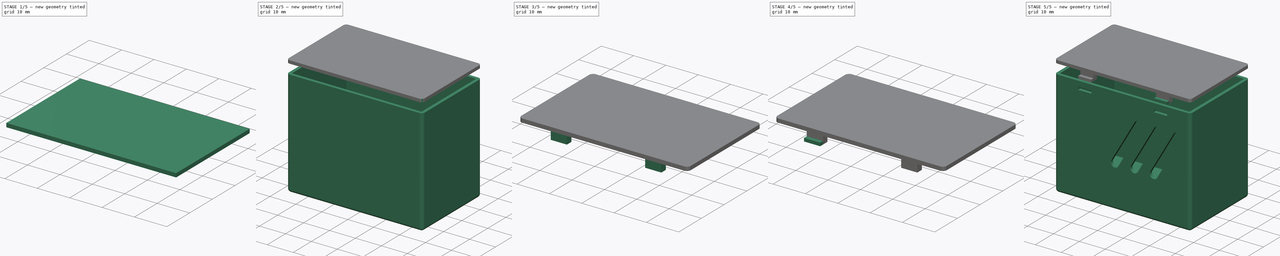
[diagram: build sequence overview — one tinted view per stage of 5, left to right]
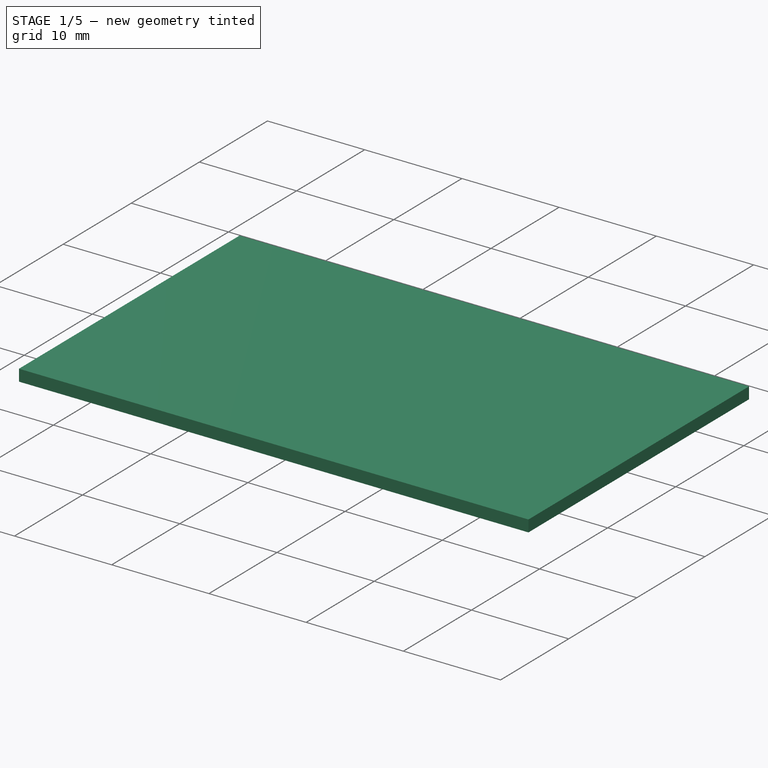
[diagram: stage 1 of 5 — iso view after this stage's code; geometry added in this stage tinted green]
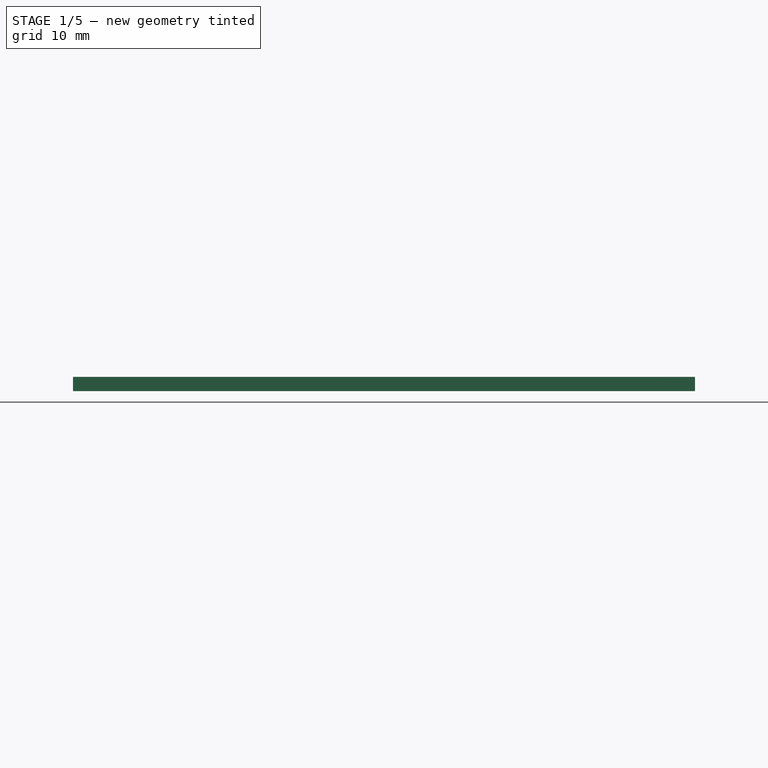
[diagram: stage 1 of 5 — front view after this stage's code; geometry added in this stage tinted green]
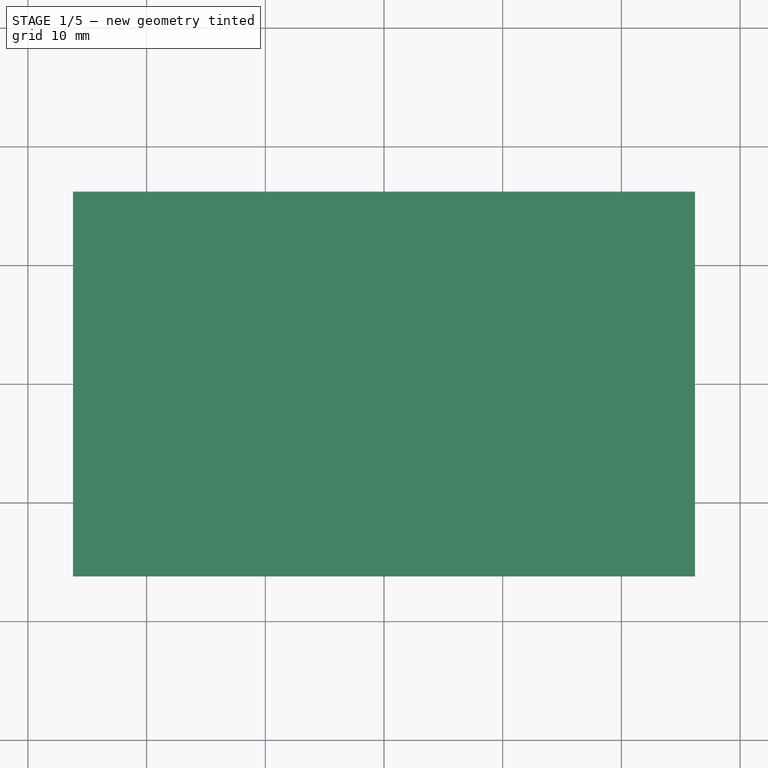
[diagram: stage 1 of 5 — top view after this stage's code; geometry added in this stage tinted green]
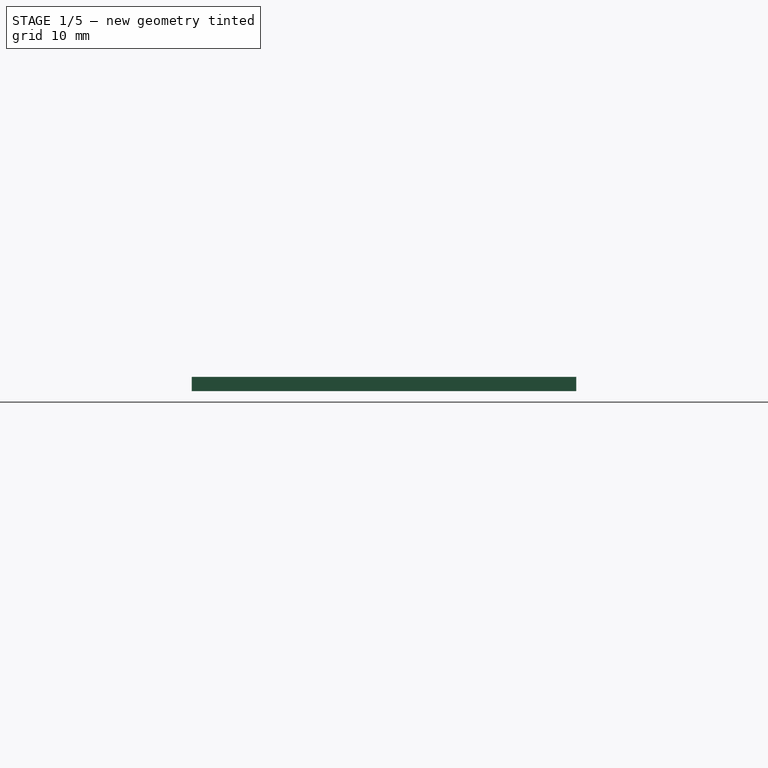
[diagram: stage 1 of 5 — right view after this stage's code; geometry added in this stage tinted green]
FCSTD DOCUMENT  (FreeCAD 0.18.3R)
Label: DimmerCase00
License: All rights reserved
LicenseURL: http://en.wikipedia.org/wiki/All_rights_reserved
objects: Sketcher::SketchObject×8, PartDesign::Pad×4, PartDesign::Pocket×4, PartDesign::Mirrored×3, PartDesign::Body×2, PartDesign::Thickness×1, PartDesign::LinearPattern×1, PartDesign::Fillet×1, PartDesign::PolarPattern×1, App::Part×1
note: 33 computed .brp shape members not serialized (recipe doc carries the construction recipe); baked Part::Feature solids carry a one-line shape summary decoded from their .brp

FEATURE [Sketcher::SketchObject] Sketch
  MapMode = 5
  Support = -> [XY_Plane001]
  sketch-geometry (4):
    g0: LineSegment StartX=-25 StartY=15 StartZ=0 EndX=25 EndY=15 EndZ=0
    g1: LineSegment StartX=25 StartY=15 StartZ=0 EndX=25 EndY=-15 EndZ=0
    g2: LineSegment StartX=25 StartY=-15 StartZ=0 EndX=-25 EndY=-15 EndZ=0
    g3: LineSegment StartX=-25 StartY=-15 StartZ=0 EndX=-25 EndY=15 EndZ=0
  constraints (11):
    c: Coincident(g0,g1)
    c: Coincident(g1,g2)
    c: Coincident(g2,g3)
    c: Coincident(g3,g0)
    c: Horizontal(g0)
    c: Horizontal(g2)
    c: Vertical(g1)
    c: Vertical(g3)
    c: Symmetric(g2,g0,g-1)
    c: DistanceX(g0,g0) = 50  'largo'
    c: DistanceY(g3,g3) = 30  'ancho'
FEATURE [PartDesign::Pad] Pad
  Length = 40
  Length2 = 100
  Profile = -> Sketch
  Type = 0
FEATURE [PartDesign::Thickness] Thickness  label="Cascaron"
  Base = -> Pad [Face6]
  BaseFeature = -> Pad
  Join = 0
  Mode = 0
  Value = 1.2
FEATURE [PartDesign::Body] Body  label="Caja"
  Group = -> [Sketch,Pad,Thickness,Sketch001,Pocket,Sketch002,Pocket001,Sketch003,Pocket002,LinearPattern,Sketch004,Pocket003,Mirrored]
  Origin = -> Origin001
  Tip = -> Mirrored
FEATURE [Sketcher::SketchObject] Sketch006
  AttachmentOffset = pos=(0,0,45) rot=(0,0,1;0rad)
  MapMode = 5
  Placement = pos=(0,0,45) rot=(0,0,1;0rad)
  Support = -> [XY_Plane002]
  expr: Constraints[9] = Sketch.Constraints.ancho + 2 * Cascaron.Value
  expr: Constraints[8] = Sketch.Constraints.largo + 2 * Cascaron.Value
  sketch-geometry (4):
    g0: LineSegment StartX=-26.2 StartY=16.2 StartZ=0 EndX=26.2 EndY=16.2 EndZ=0
    g1: LineSegment StartX=26.2 StartY=16.2 StartZ=0 EndX=26.2 EndY=-16.2 EndZ=0
    g2: LineSegment StartX=26.2 StartY=-16.2 StartZ=0 EndX=-26.2 EndY=-16.2 EndZ=0
    g3: LineSegment StartX=-26.2 StartY=-16.2 StartZ=0 EndX=-26.2 EndY=16.2 EndZ=0
  constraints (11):
    c: Coincident(g0,g1)
    c: Coincident(g1,g2)
    c: Coincident(g2,g3)
    c: Coincident(g3,g0)
    c: Horizontal(g0)
    c: Horizontal(g2)
    c: Vertical(g1)
    c: Vertical(g3)
    c: DistanceX(g0,g0) = 52.4
    c: DistanceY(g1,g1) = 32.4
    c: Symmetric(g0,g1,g-1)
FEATURE [PartDesign::Pad] Pad001
  Length = 1.2
  Length2 = 100
  Profile = -> Sketch006
  Reversed = true
  Type = 0
  expr: Length = Cascaron.Value
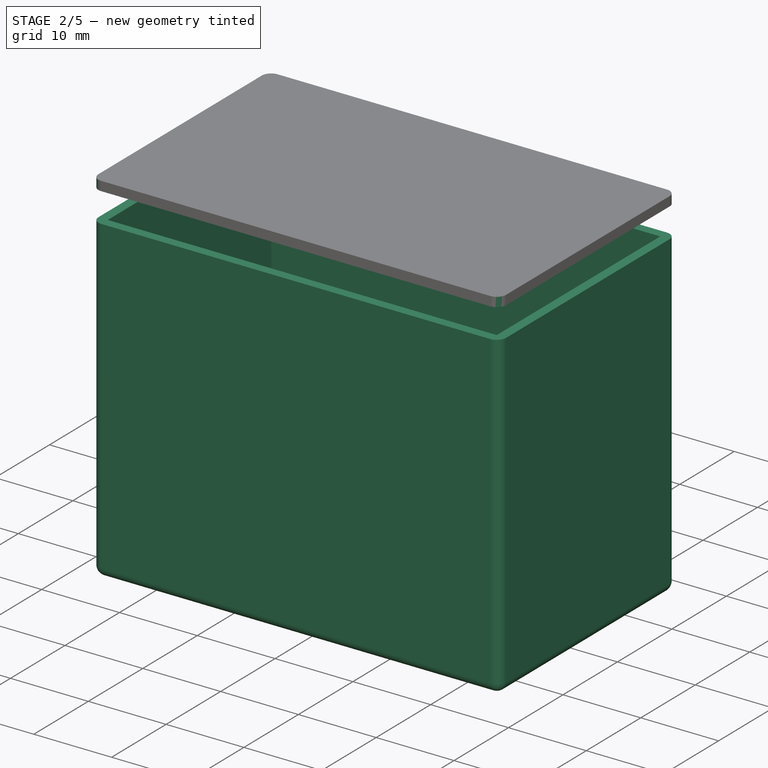
[diagram: stage 2 of 5 — iso view after this stage's code; geometry added in this stage tinted green]
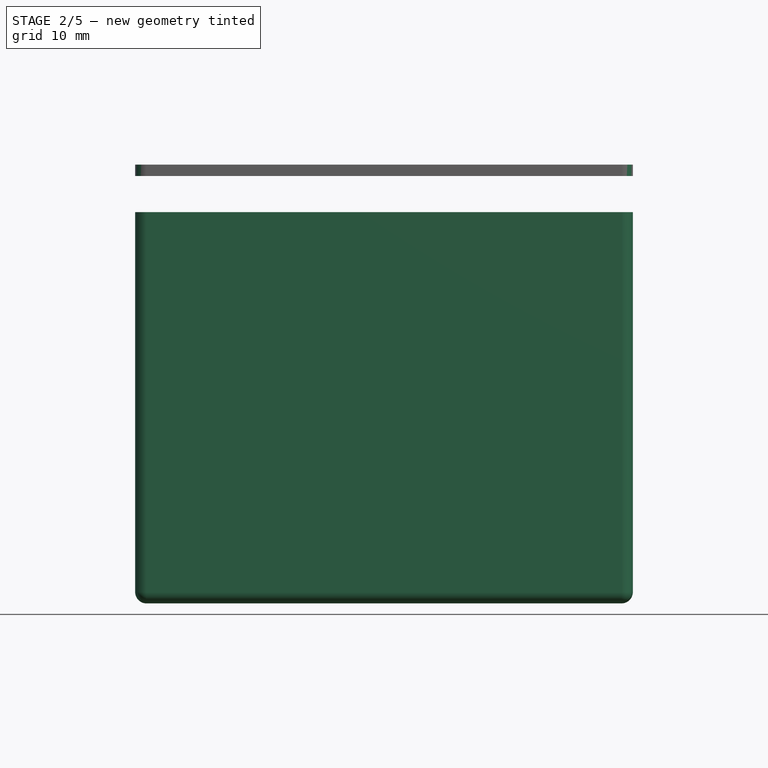
[diagram: stage 2 of 5 — front view after this stage's code; geometry added in this stage tinted green]
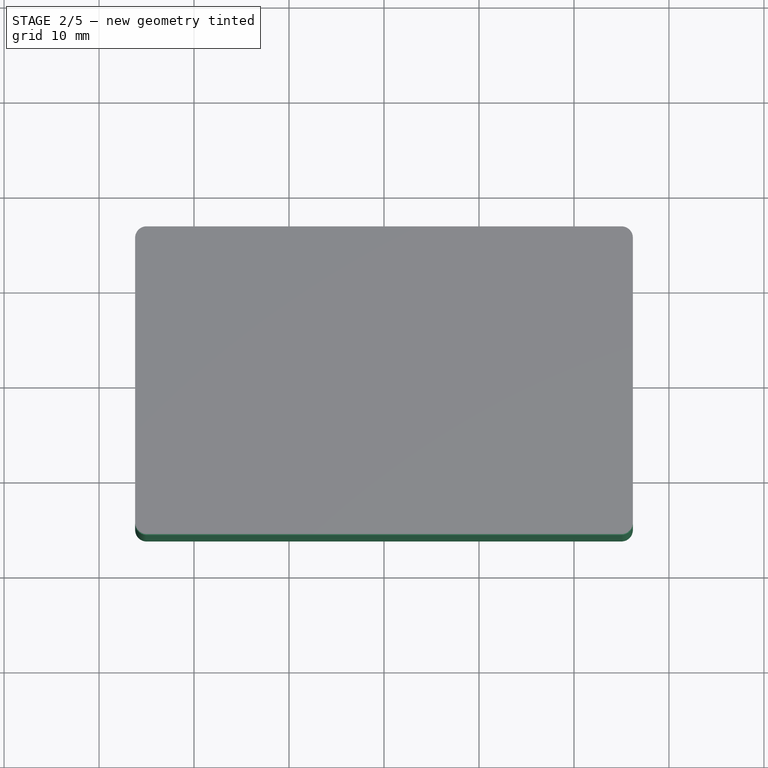
[diagram: stage 2 of 5 — top view after this stage's code; geometry added in this stage tinted green]
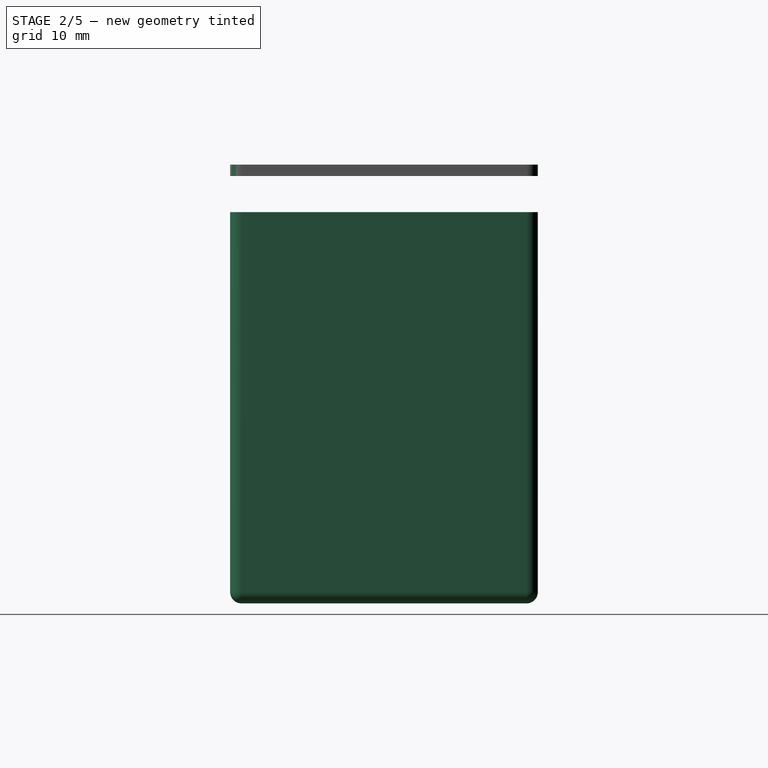
[diagram: stage 2 of 5 — right view after this stage's code; geometry added in this stage tinted green]
FEATURE [Sketcher::SketchObject] Sketch001  label="potenciometro"
  ExternalGeometry = -> [Thickness]
  MapMode = 5
  Placement = pos=(0,0,-1.2) rot=(1,0,0;3.14159rad)
  Support = -> [Thickness]
  sketch-geometry (1):
    g0: Circle CenterX=6 CenterY=2.5 CenterZ=0 NormalX=0 NormalY=0 NormalZ=1 AngleXU=0 Radius=3.5
  constraints (3):
    c: Radius(g0) = 3.5
    c: DistanceX(g0,g-3) = 19
    c: DistanceY(g-3,g0) = 17.5
FEATURE [PartDesign::Pocket] Pocket  label="pot"
  BaseFeature = -> Thickness
  Length = 5
  Length2 = 100
  Profile = -> Sketch001
  Type = 1
FEATURE [Sketcher::SketchObject] Sketch002
  ExternalGeometry = -> [Pocket]
  MapMode = 5
  Placement = pos=(-26.2,0,0) rot=(0.57735,-0.57735,-0.57735;2.0944rad)
  Support = -> [Pocket]
  sketch-geometry (2):
    g0: Circle CenterX=5 CenterY=12 CenterZ=0 NormalX=0 NormalY=0 NormalZ=1 AngleXU=0 Radius=3
    g1: Circle CenterX=5 CenterY=25 CenterZ=0 NormalX=0 NormalY=0 NormalZ=1 AngleXU=0 Radius=3
  constraints (6):
    c: Radius(g0) = 3
    c: DistanceX(g-3,g0) = 20
    c: DistanceY(g-3,g0) = 12
    c: Equal(g0,g1) = 3
    c: DistanceX(g-3,g1) = 20
    c: DistanceY(g1,g-3) = 15
FEATURE [PartDesign::Pocket] Pocket001  label="cables"
  BaseFeature = -> Pocket
  Length = 2
  Length2 = 100
  Profile = -> Sketch002
  Type = 0
FEATURE [PartDesign::Fillet] Fillet
  Base = -> Pad001 [Edge8,Edge1,Edge2,Edge5]
  BaseFeature = -> Pad001
  Radius = 1.2
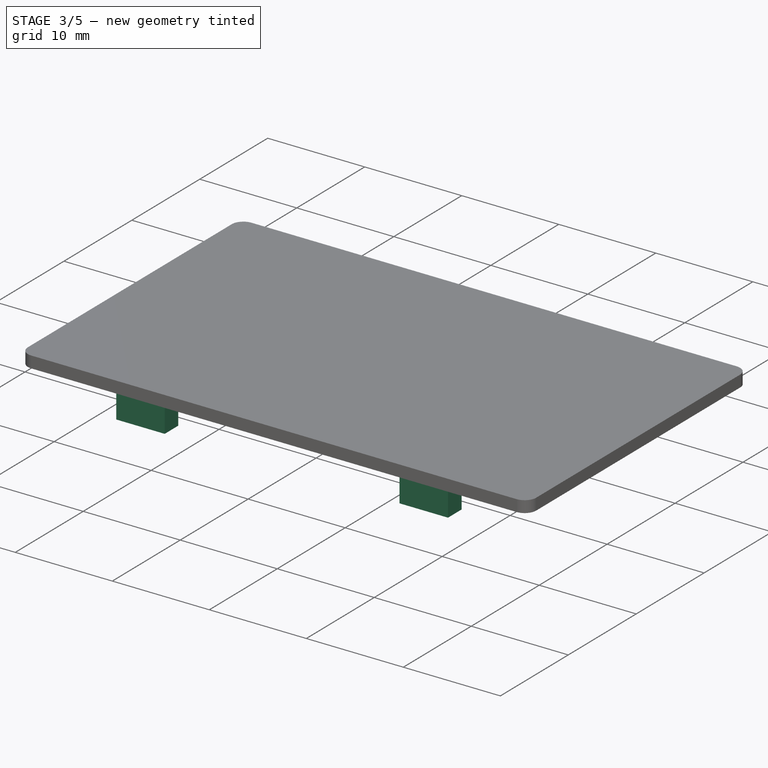
[diagram: stage 3 of 5 — iso view after this stage's code; geometry added in this stage tinted green]
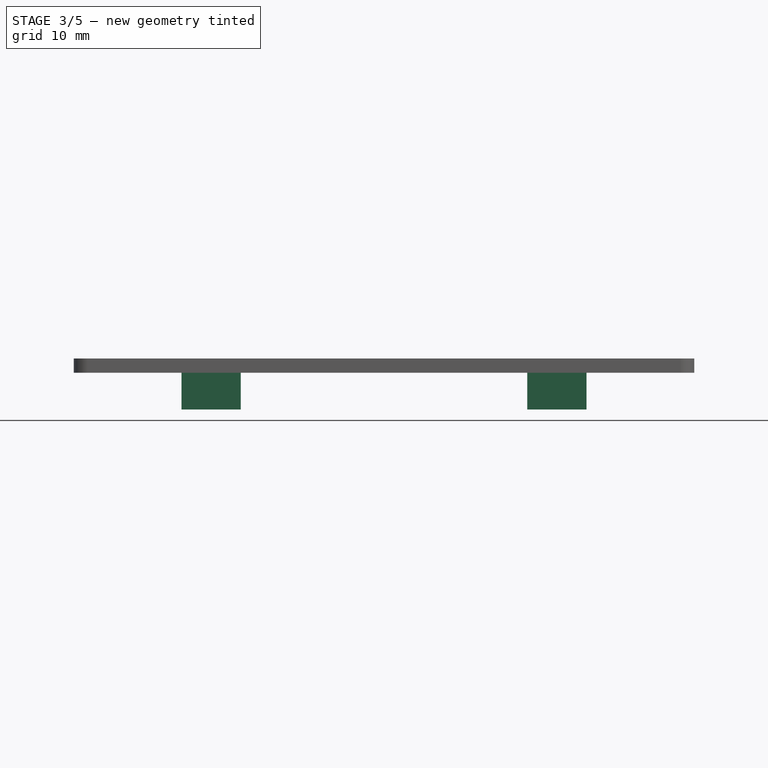
[diagram: stage 3 of 5 — front view after this stage's code; geometry added in this stage tinted green]
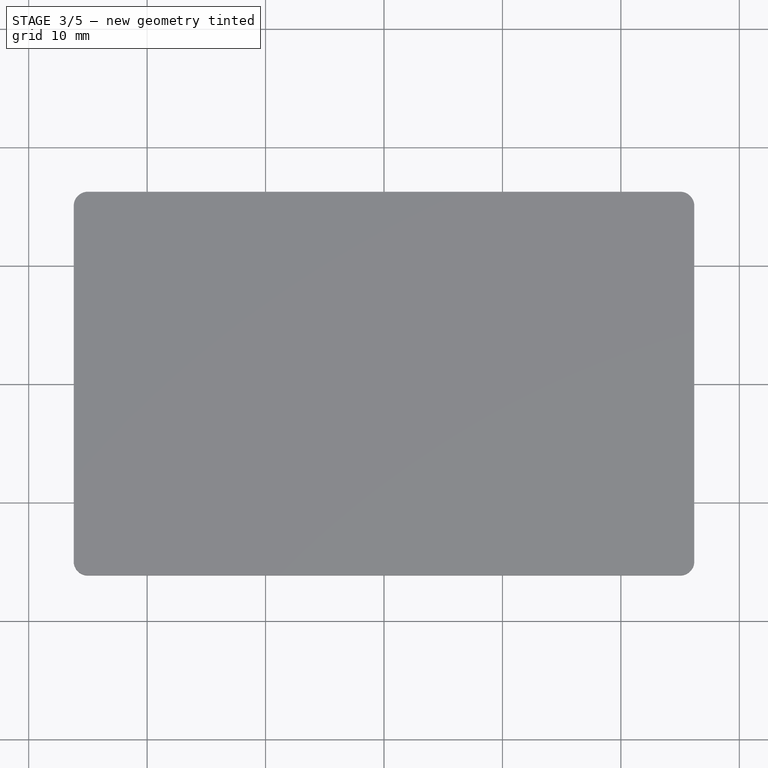
[diagram: stage 3 of 5 — top view after this stage's code; geometry added in this stage tinted green]
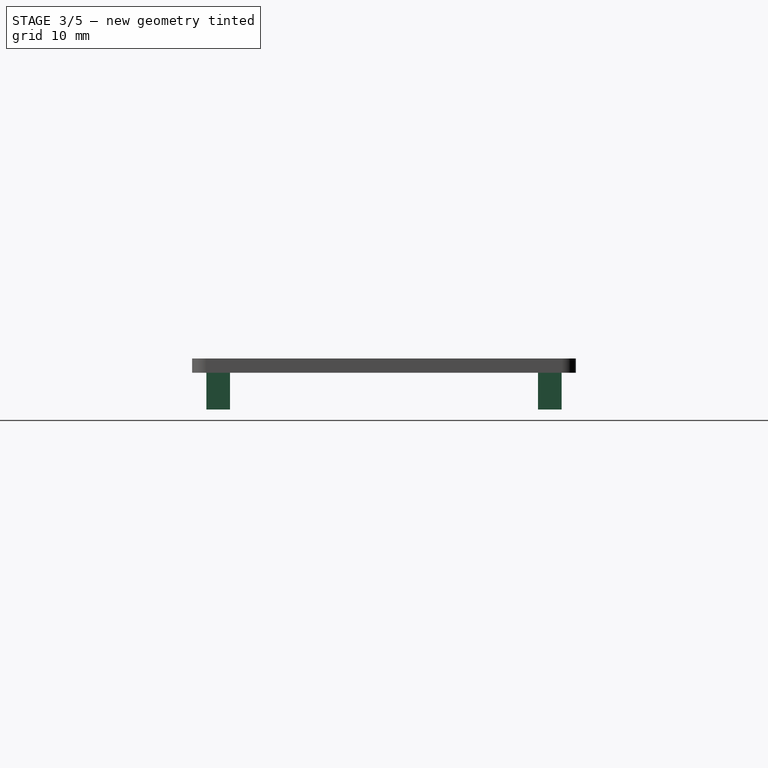
[diagram: stage 3 of 5 — right view after this stage's code; geometry added in this stage tinted green]
FEATURE [Sketcher::SketchObject] Sketch003
  MapMode = 5
  Placement = pos=(0,-16.2,0) rot=(1,0,0;1.5708rad)
  Support = -> [Pocket001]
  sketch-geometry (5):
    g0: ArcOfCircle CenterX=12 CenterY=15 CenterZ=0 NormalX=0 NormalY=0 NormalZ=1 AngleXU=0 Radius=1.5 StartAngle=2.61799 EndAngle=5.75959
    g1: ArcOfCircle CenterX=21 CenterY=30.5885 CenterZ=0 NormalX=0 NormalY=0 NormalZ=1 AngleXU=0 Radius=1.5 StartAngle=5.75959 EndAngle=8.90118
    g2: LineSegment StartX=13.299 StartY=14.25 StartZ=0 EndX=22.299 EndY=29.8385 EndZ=0
    g3: LineSegment StartX=10.701 StartY=15.75 StartZ=0 EndX=19.701 EndY=31.3385 EndZ=0
    g4: LineSegment [constr] StartX=12 StartY=15 StartZ=0 EndX=21 EndY=30.5885 EndZ=0
  constraints (12):
    c: Tangent(g0,g3) = 1.5708
    c: Tangent(g0,g2) = -1.5708
    c: Tangent(g2,g1) = -1.5708
    c: Tangent(g3,g1) = 1.5708
    c: Equal(g0,g1)
    c: Coincident(g4,g1)
    c: Coincident(g4,g0)
    c: Angle(g-2,g4) = 2.61799
    c: Distance(g4) = 18
    c: Distance(g0,g0) = 3
    c: DistanceX(g-1,g0) = 12
    c: DistanceY(g-1,g0) = 15
FEATURE [PartDesign::Pocket] Pocket002  label="ranura"
  BaseFeature = -> Pocket001
  Length = 5
  Length2 = 100
  Profile = -> Sketch003
  Type = 0
FEATURE [PartDesign::LinearPattern] LinearPattern  label="ranuras"
  BaseFeature = -> Pocket002
  Direction = -> Sketch003 [H_Axis]
  Length = 15
  Occurrences = 3
  Originals = -> [Pocket002]
  Reversed = true
FEATURE [Sketcher::SketchObject] Sketch007
  MapMode = 5
  Placement = pos=(0,0,43.8) rot=(1,0,0;3.14159rad)
  Support = -> [Fillet]
  expr: Constraints[11] = Sketch.Constraints.ancho / 2
  expr: Constraints[10] = Sketch004.Constraints.SeparacionDelCentro - 0.1mm
  sketch-geometry (16):
    g0: LineSegment StartX=-17.1 StartY=15 StartZ=0 EndX=-12.1 EndY=15 EndZ=0
    g1: LineSegment StartX=-12.1 StartY=15 StartZ=0 EndX=-12.1 EndY=13 EndZ=0
    g2: LineSegment StartX=-12.1 StartY=13 StartZ=0 EndX=-17.1 EndY=13 EndZ=0
    g3: LineSegment StartX=-17.1 StartY=13 StartZ=0 EndX=-17.1 EndY=15 EndZ=0
    g4: LineSegment StartX=17.1 StartY=15 StartZ=0 EndX=12.1 EndY=15 EndZ=0
    g5: LineSegment StartX=12.1 StartY=15 StartZ=0 EndX=12.1 EndY=13 EndZ=0
    g6: LineSegment StartX=12.1 StartY=13 StartZ=0 EndX=17.1 EndY=13 EndZ=0
    g7: LineSegment StartX=17.1 StartY=13 StartZ=0 EndX=17.1 EndY=15 EndZ=0
    g8: LineSegment StartX=-17.1 StartY=-15 StartZ=0 EndX=-12.1 EndY=-15 EndZ=0
    g9: LineSegment StartX=-12.1 StartY=-15 StartZ=0 EndX=-12.1 EndY=-13 EndZ=0
    g10: LineSegment StartX=-12.1 StartY=-13 StartZ=0 EndX=-17.1 EndY=-13 EndZ=0
    g11: LineSegment StartX=-17.1 StartY=-13 StartZ=0 EndX=-17.1 EndY=-15 EndZ=0
    g12: LineSegment StartX=17.1 StartY=-15 StartZ=0 EndX=12.1 EndY=-15 EndZ=0
    g13: LineSegment StartX=12.1 StartY=-15 StartZ=0 EndX=12.1 EndY=-13 EndZ=0
    g14: LineSegment StartX=12.1 StartY=-13 StartZ=0 EndX=17.1 EndY=-13 EndZ=0
    g15: LineSegment StartX=17.1 StartY=-13 StartZ=0 EndX=17.1 EndY=-15 EndZ=0
  constraints (36):
    c: Coincident(g0,g1)
    c: Coincident(g1,g2)
    c: Coincident(g2,g3)
    c: Coincident(g3,g0)
    c: Horizontal(g0)
    c: Horizontal(g2)
    c: Vertical(g1)
    c: Vertical(g3)
    c: DistanceX(g2,g2) = 5
    c: DistanceY(g1,g1) = 2
    c: DistanceX(g-2,g0) = -12.1
    c: DistanceY(g-1,g0) = 15
    c: Coincident(g4,g5)
    c: Coincident(g5,g6)
    c: Coincident(g6,g7)
    c: Coincident(g7,g4)
    c: Horizontal(g4)
    c: Horizontal(g6)
    c: Vertical(g5)
    c: Vertical(g7)
    c: Coincident(g8,g9)
    c: Coincident(g9,g10)
    c: Coincident(g10,g11)
    c: Coincident(g11,g8)
    c: Horizontal(g8)
    c: Horizontal(g10)
    c: Vertical(g9)
    c: Vertical(g11)
    c: Coincident(g12,g13)
    c: Coincident(g13,g14)
    c: Coincident(g14,g15)
    c: Coincident(g15,g12)
    c: Horizontal(g12)
    c: Horizontal(g14)
    c: Vertical(g13)
    c: Vertical(g15)
FEATURE [PartDesign::Pad] Pad002
  BaseFeature = -> Fillet
  Length = 3.1
  Length2 = 100
  Profile = -> Sketch007
  Type = 0
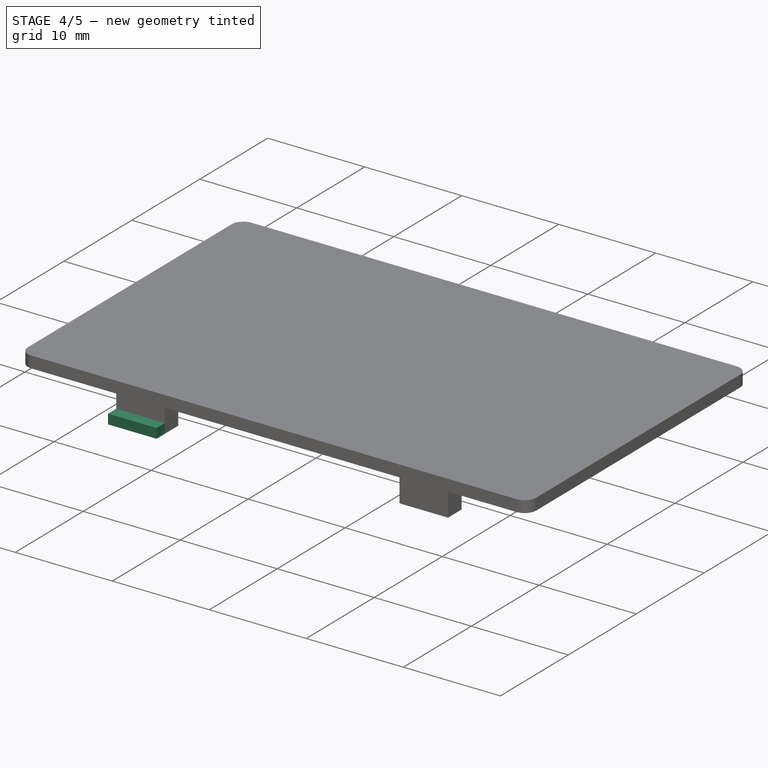
[diagram: stage 4 of 5 — iso view after this stage's code; geometry added in this stage tinted green]
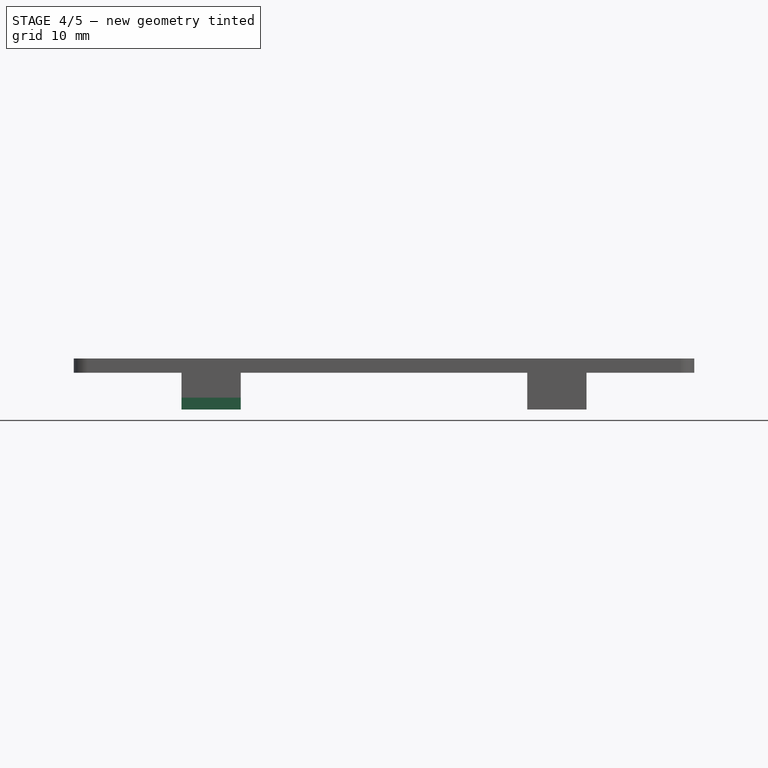
[diagram: stage 4 of 5 — front view after this stage's code; geometry added in this stage tinted green]
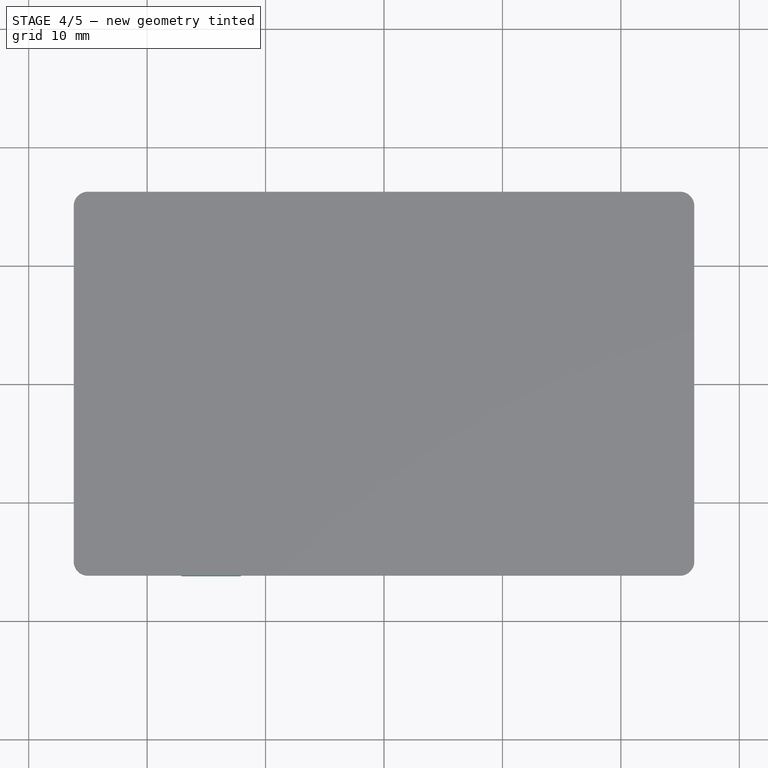
[diagram: stage 4 of 5 — top view after this stage's code; geometry added in this stage tinted green]
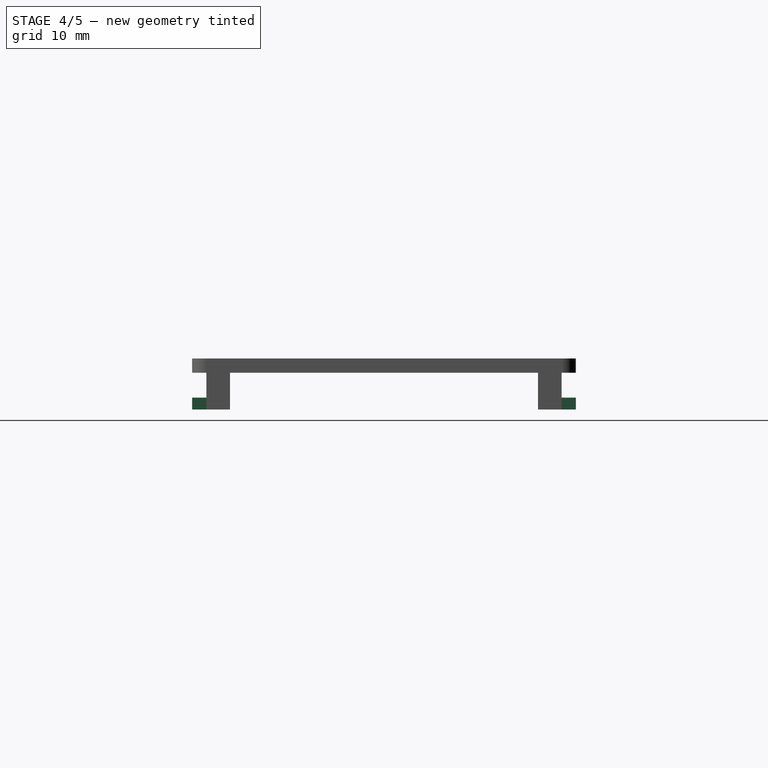
[diagram: stage 4 of 5 — right view after this stage's code; geometry added in this stage tinted green]
FEATURE [Sketcher::SketchObject] Sketch008
  ExternalGeometry = -> [Pad002]
  MapMode = 5
  Placement = pos=(0,-15,0) rot=(1,0,0;1.5708rad)
  Support = -> [Pad002]
  sketch-geometry (4):
    g0: LineSegment StartX=-17.1 StartY=41.7 StartZ=0 EndX=-12.1 EndY=41.7 EndZ=0
    g1: LineSegment StartX=-12.1 StartY=41.7 StartZ=0 EndX=-12.1 EndY=40.7 EndZ=0
    g2: LineSegment StartX=-12.1 StartY=40.7 StartZ=0 EndX=-17.1 EndY=40.7 EndZ=0
    g3: LineSegment StartX=-17.1 StartY=40.7 StartZ=0 EndX=-17.1 EndY=41.7 EndZ=0
  constraints (10):
    c: Coincident(g0,g1)
    c: Coincident(g1,g2)
    c: Coincident(g2,g3)
    c: Coincident(g3,g0)
    c: Horizontal(g0)
    c: Vertical(g1)
    c: Vertical(g3)
    c: Coincident(g2,g-3)
    c: Coincident(g1,g-4)
    c: DistanceY(g1,g1) = 1
FEATURE [PartDesign::Pad] Pad003
  BaseFeature = -> Pad002
  Length = 1.2
  Length2 = 100
  Profile = -> Sketch008
  Type = 0
  expr: Length = Cascaron.Value
FEATURE [PartDesign::PolarPattern] PolarPattern
  Angle = 360
  Axis = -> Z_Axis002
  BaseFeature = -> Pad003
  Occurrences = 2
  Originals = -> [Pad003]
FEATURE [PartDesign::Mirrored] Mirrored001
  BaseFeature = -> PolarPattern
  MirrorPlane = -> XZ_Plane002
  Originals = -> [Pad003]
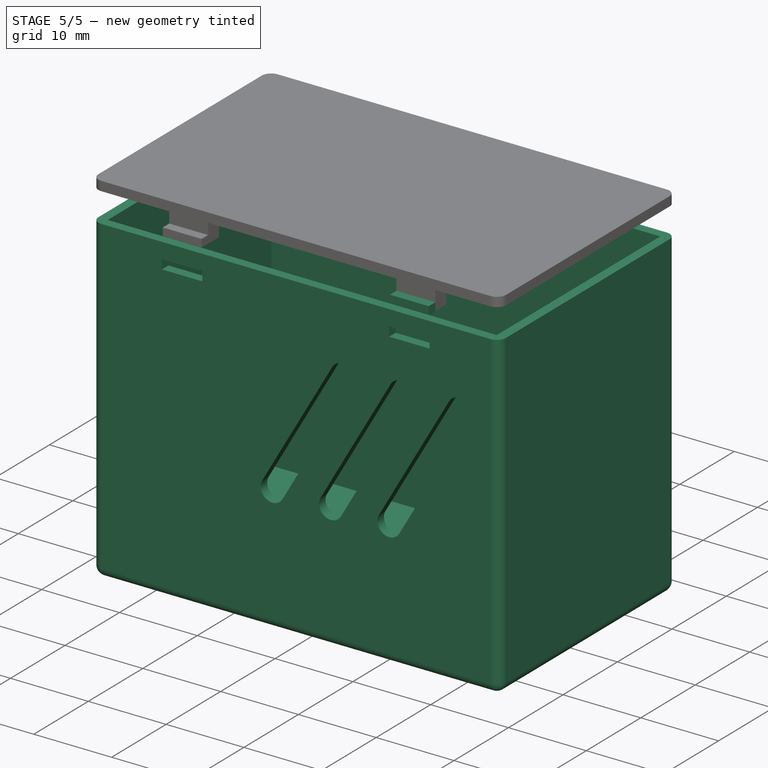
[diagram: stage 5 of 5 — iso view after this stage's code; geometry added in this stage tinted green]
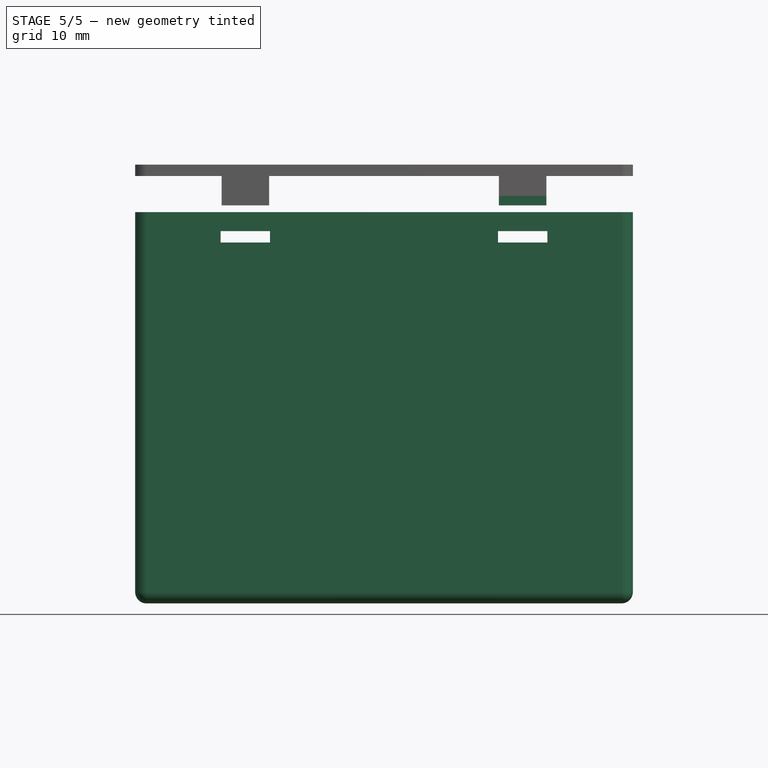
[diagram: stage 5 of 5 — front view after this stage's code; geometry added in this stage tinted green]
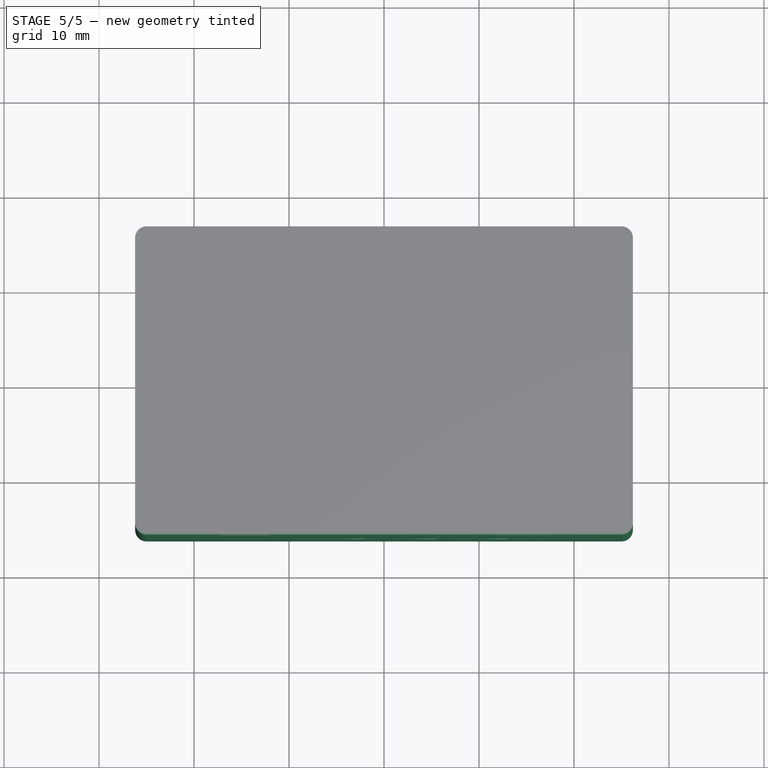
[diagram: stage 5 of 5 — top view after this stage's code; geometry added in this stage tinted green]
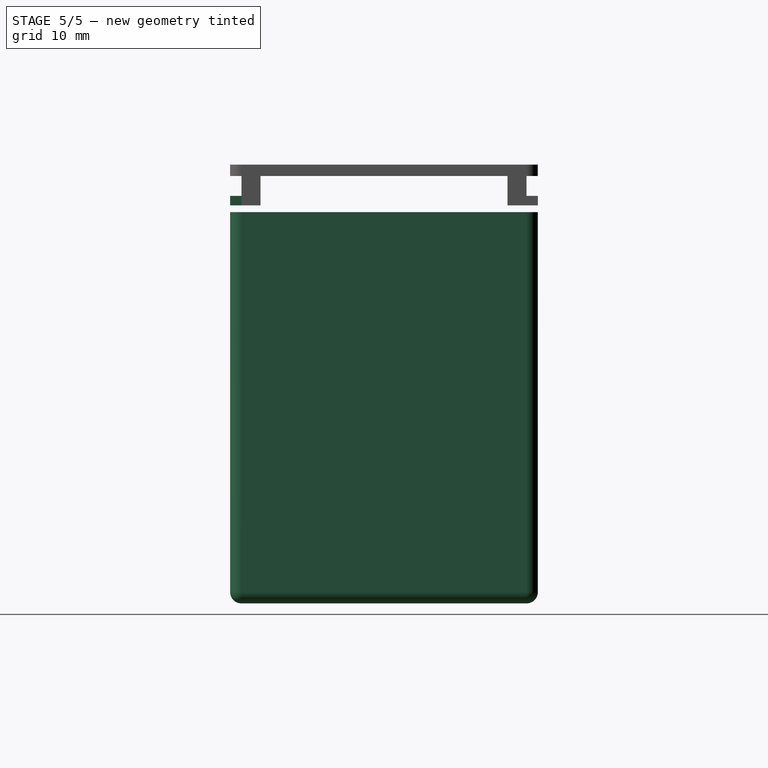
[diagram: stage 5 of 5 — right view after this stage's code; geometry added in this stage tinted green]
FEATURE [Sketcher::SketchObject] Sketch004
  ExternalGeometry = -> [LinearPattern]
  MapMode = 5
  Placement = pos=(0,-16.2,0) rot=(1,0,0;1.5708rad)
  Support = -> [LinearPattern]
  sketch-geometry (5):
    g0: LineSegment StartX=-17.2 StartY=38 StartZ=0 EndX=-12 EndY=38 EndZ=0
    g1: LineSegment StartX=-12 StartY=38 StartZ=0 EndX=-12 EndY=36.8 EndZ=0
    g2: LineSegment StartX=-12 StartY=36.8 StartZ=0 EndX=-17.2 EndY=36.8 EndZ=0
    g3: LineSegment StartX=-17.2 StartY=36.8 StartZ=0 EndX=-17.2 EndY=38 EndZ=0
    g4: GeomPoint X=-12 Y=37.4 Z=0
  constraints (13):
    c: Coincident(g0,g1)
    c: Coincident(g1,g2)
    c: Coincident(g2,g3)
    c: Coincident(g3,g0)
    c: Horizontal(g0)
    c: Horizontal(g2)
    c: Vertical(g1)
    c: Vertical(g3)
    c: DistanceY(g1,g1) = 1.2  'AnchoAgujero'
    c: DistanceX(g2,g2) = 5.2  'LargoAgujero'
    c: Symmetric(g0,g1,g4)
    c: Distance(g4,g-3) = 2.6  'SeparacionAgujero'
    c: DistanceX(g-2,g4) = -12  'SeparacionDelCentro'
FEATURE [PartDesign::Pocket] Pocket003  label="AgujeroCaraLarga"
  BaseFeature = -> LinearPattern
  Length = 5
  Length2 = 100
  Profile = -> Sketch004
  Type = 1
FEATURE [PartDesign::Mirrored] Mirrored  label="AgujerosCaraLarga"
  BaseFeature = -> Pocket003
  MirrorPlane = -> Sketch004 [V_Axis]
  Originals = -> [Pocket003]
FEATURE [PartDesign::Mirrored] Mirrored002
  BaseFeature = -> Mirrored001
  MirrorPlane = -> Sketch008 [V_Axis]
  Originals = -> [Pad003]
FEATURE [PartDesign::Body] Body001  label="tapa"
  Group = -> [Sketch006,Pad001,Fillet,Sketch007,Pad002,Sketch008,Pad003,PolarPattern,Mirrored001,Mirrored002]
  Origin = -> Origin002
  Placement = pos=(0,45,43.8) rot=(0,1,0;3.14159rad)
  Tip = -> Mirrored002
FEATURE [App::Part] Part  label="OpenCase"
  Group = -> [Body,Body001]
  Origin = -> Origin
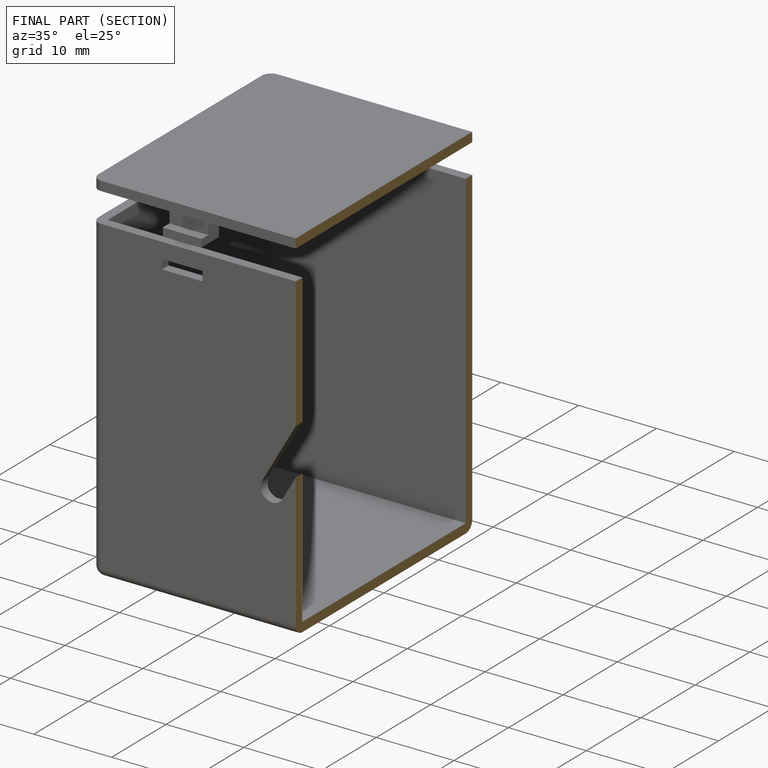
[diagram: finished part — half-section view (interior)]
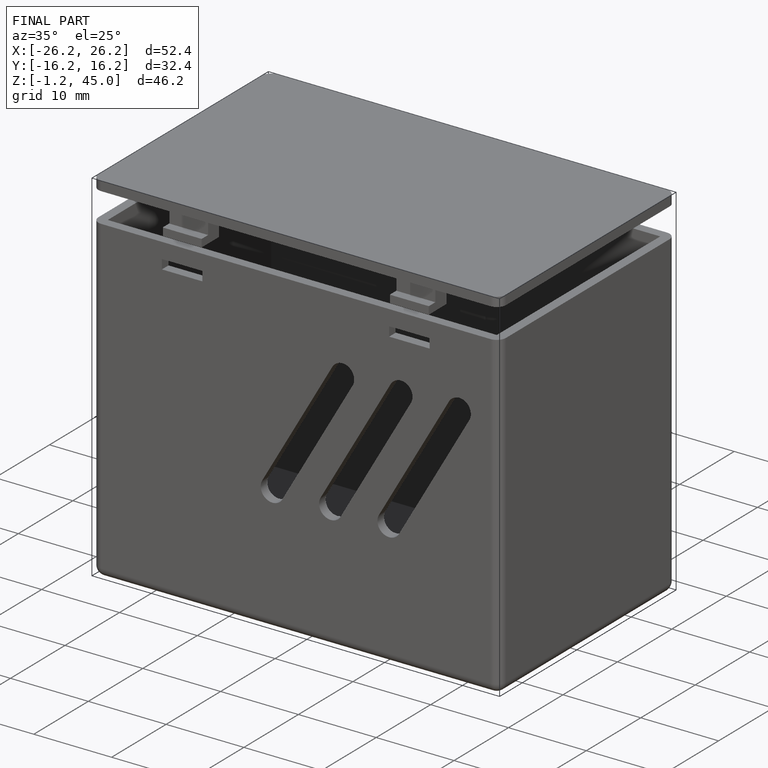
[diagram: finished part — iso view with bounding-box wireframe]
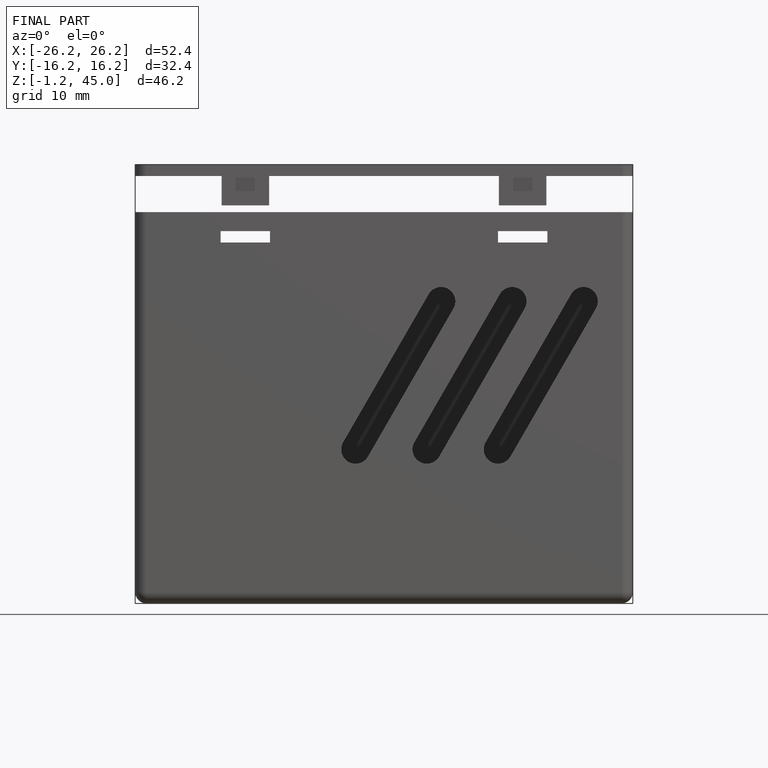
[diagram: finished part — front view with bounding-box wireframe]
